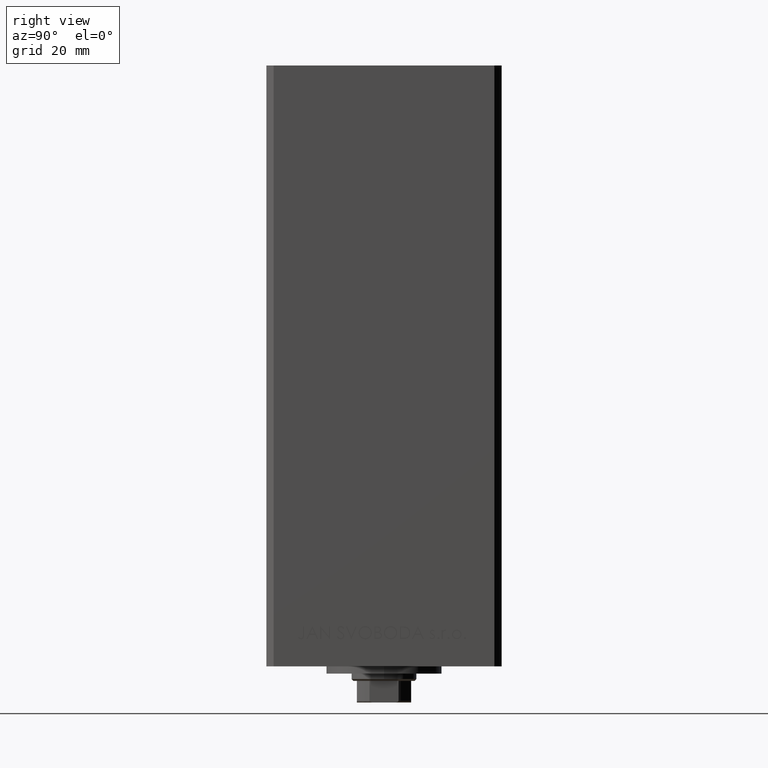
[diagram: clean part render]
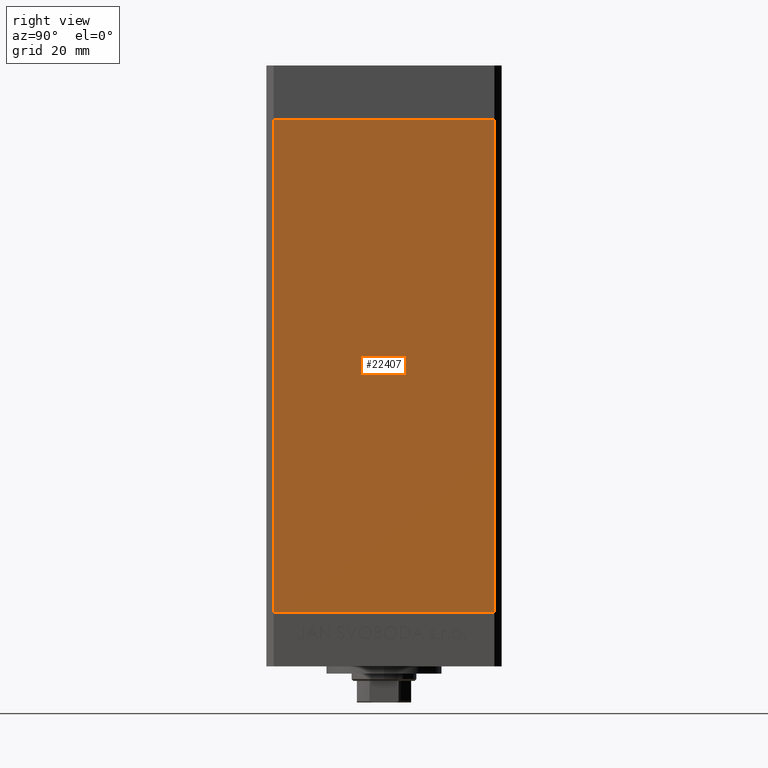
[diagram: same view with one face highlighted and labeled with its STEP entity id]
A machine part, right view. The second image highlights one B-rep face of the part: STEP entity #22407.
In plain terms, the highlighted planar face has unit normal (1, -0, 0).
Its self-contained STEP definition (entity closure, byte-faithful):
#869 = VECTOR ( 'NONE', #36915, 1000.000000000000000 ) ;
#1819 = LINE ( 'NONE', #6018, #12449 ) ;
#2520 = ORIENTED_EDGE ( 'NONE', *, *, #8359, .T. ) ;
#6018 = CARTESIAN_POINT ( 'NONE',  ( 37.50000000000000711, 30.50000000000000000, 136.0000000000000000 ) ) ;
#6883 = CARTESIAN_POINT ( 'NONE',  ( 37.50000000000000711, 30.50000000000000000, 136.0000000000000000 ) ) ;
#8359 = EDGE_CURVE ( 'NONE', #47557, #35174, #39950, .T. ) ;
#10031 = CARTESIAN_POINT ( 'NONE',  ( 37.50000000000000711, 30.50000000000000000, 136.0000000000000000 ) ) ;
#12449 = VECTOR ( 'NONE', #16888, 1000.000000000000000 ) ;
#13778 = ORIENTED_EDGE ( 'NONE', *, *, #23020, .F. ) ;
#14299 = DIRECTION ( 'NONE',  ( 2.275047181608927644E-16, 1.000000000000000000, 0.000000000000000000 ) ) ;
#16888 = DIRECTION ( 'NONE',  ( -0.000000000000000000, -0.000000000000000000, -1.000000000000000000 ) ) ;
#17405 = DIRECTION ( 'NONE',  ( -2.275047181608927644E-16, -1.000000000000000000, 0.000000000000000000 ) ) ;
#17765 = DIRECTION ( 'NONE',  ( 1.000000000000000000, -2.275047181608927644E-16, 0.000000000000000000 ) ) ;
#19948 = EDGE_CURVE ( 'NONE', #47557, #25415, #1819, .T. ) ;
#21321 = VECTOR ( 'NONE', #25102, 1000.000000000000000 ) ;
#22407 = ADVANCED_FACE ( 'NONE', ( #48688 ), #29614, .T. ) ;
#23020 = EDGE_CURVE ( 'NONE', #25415, #24388, #32237, .T. ) ;
#24388 = VERTEX_POINT ( 'NONE', #29928 ) ;
#25102 = DIRECTION ( 'NONE',  ( -2.275047181608927644E-16, -1.000000000000000000, 0.000000000000000000 ) ) ;
#25415 = VERTEX_POINT ( 'NONE', #48795 ) ;
#26101 = CARTESIAN_POINT ( 'NONE',  ( 37.49999999999999289, -30.50000000000000000, 136.0000000000000000 ) ) ;
#29614 = PLANE ( 'NONE',  #34607 ) ;
#29732 = ORIENTED_EDGE ( 'NONE', *, *, #19948, .F. ) ;
#29928 = CARTESIAN_POINT ( 'NONE',  ( 37.49999999999999289, -30.50000000000000000, 0.000000000000000000 ) ) ;
#32237 = LINE ( 'NONE', #33873, #36213 ) ;
#32581 = EDGE_CURVE ( 'NONE', #35174, #24388, #33203, .T. ) ;
#33203 = LINE ( 'NONE', #36191, #869 ) ;
#33873 = CARTESIAN_POINT ( 'NONE',  ( 37.50000000000000711, 30.50000000000000000, 0.000000000000000000 ) ) ;
#34299 = CARTESIAN_POINT ( 'NONE',  ( 37.50000000000000711, 30.50000000000000000, 136.0000000000000000 ) ) ;
#34607 = AXIS2_PLACEMENT_3D ( 'NONE', #6883, #17765, #14299 ) ;
#35174 = VERTEX_POINT ( 'NONE', #26101 ) ;
#36191 = CARTESIAN_POINT ( 'NONE',  ( 37.49999999999999289, -30.50000000000000000, 136.0000000000000000 ) ) ;
#36213 = VECTOR ( 'NONE', #17405, 1000.000000000000000 ) ;
#36915 = DIRECTION ( 'NONE',  ( -0.000000000000000000, -0.000000000000000000, -1.000000000000000000 ) ) ;
#39950 = LINE ( 'NONE', #10031, #21321 ) ;
#42035 = ORIENTED_EDGE ( 'NONE', *, *, #32581, .T. ) ;
#43635 = EDGE_LOOP ( 'NONE', ( #13778, #29732, #2520, #42035 ) ) ;
#47557 = VERTEX_POINT ( 'NONE', #34299 ) ;
#48688 = FACE_OUTER_BOUND ( 'NONE', #43635, .T. ) ;
#48795 = CARTESIAN_POINT ( 'NONE',  ( 37.50000000000000711, 30.50000000000000000, 0.000000000000000000 ) ) ;